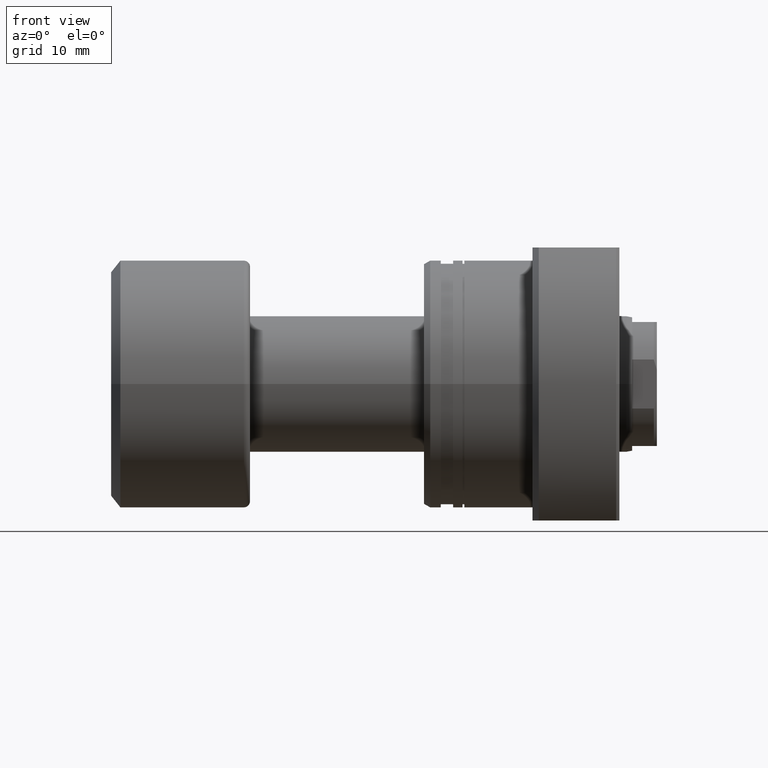
[diagram: clean part render]
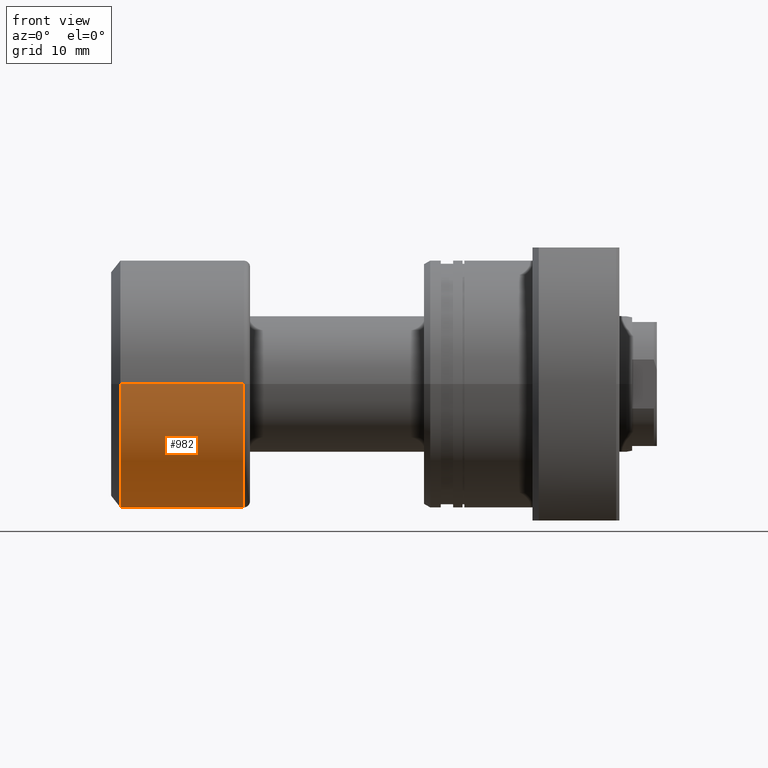
[diagram: same view with one face highlighted and labeled with its STEP entity id]
A machine part, front view. The second image highlights one B-rep face of the part: STEP entity #982.
In plain terms, the highlighted cylindrical surface (partial cylindrical patch) has radius 20 mm, axis along (-1, -0, -0).
Its self-contained STEP definition (entity closure, byte-faithful):
#10 = CARTESIAN_POINT ( 'NONE',  ( 21.40000000000000213, 2.288820569227801297E-16, 0.000000000000000000 ) ) ;
#24 = CARTESIAN_POINT ( 'NONE',  ( -2.139084644138131786E-16, 20.00000000000000000, 2.449293598294706513E-15 ) ) ;
#340 = LINE ( 'NONE', #2601, #2043 ) ;
#430 = AXIS2_PLACEMENT_3D ( 'NONE', #2888, #1636, #2688 ) ;
#493 = CIRCLE ( 'NONE', #1310, 20.00000000000000000 ) ;
#631 = CARTESIAN_POINT ( 'NONE',  ( 21.40000000000000213, 20.00000000000000000, 2.449293598294706513E-15 ) ) ;
#703 = FACE_OUTER_BOUND ( 'NONE', #1199, .T. ) ;
#785 = EDGE_CURVE ( 'NONE', #1814, #3218, #340, .T. ) ;
#829 = ORIENTED_EDGE ( 'NONE', *, *, #1470, .F. ) ;
#909 = ORIENTED_EDGE ( 'NONE', *, *, #785, .T. ) ;
#944 = ORIENTED_EDGE ( 'NONE', *, *, #1042, .T. ) ;
#982 = ADVANCED_FACE ( 'NONE', ( #703 ), #1652, .T. ) ;
#986 = VERTEX_POINT ( 'NONE', #631 ) ;
#1042 = EDGE_CURVE ( 'NONE', #986, #1814, #2305, .T. ) ;
#1199 = EDGE_LOOP ( 'NONE', ( #829, #944, #909, #1932 ) ) ;
#1233 = DIRECTION ( 'NONE',  ( -1.000000000000000000, -1.069542322069065801E-17, -0.000000000000000000 ) ) ;
#1310 = AXIS2_PLACEMENT_3D ( 'NONE', #2804, #2342, #2616 ) ;
#1335 = VERTEX_POINT ( 'NONE', #2425 ) ;
#1470 = EDGE_CURVE ( 'NONE', #986, #1335, #2253, .T. ) ;
#1636 = DIRECTION ( 'NONE',  ( -1.000000000000000000, -1.069542322069065801E-17, -0.000000000000000000 ) ) ;
#1652 = CYLINDRICAL_SURFACE ( 'NONE', #430, 20.00000000000000000 ) ;
#1811 = DIRECTION ( 'NONE',  ( -1.000000000000000000, -1.069542322069065801E-17, -0.000000000000000000 ) ) ;
#1814 = VERTEX_POINT ( 'NONE', #2438 ) ;
#1932 = ORIENTED_EDGE ( 'NONE', *, *, #2712, .F. ) ;
#1944 = AXIS2_PLACEMENT_3D ( 'NONE', #10, #1952, #2939 ) ;
#1952 = DIRECTION ( 'NONE',  ( -1.000000000000000000, -1.069542322069065801E-17, -0.000000000000000000 ) ) ;
#2043 = VECTOR ( 'NONE', #1811, 1000.000000000000000 ) ;
#2253 = LINE ( 'NONE', #24, #2505 ) ;
#2305 = CIRCLE ( 'NONE', #1944, 20.00000000000000000 ) ;
#2342 = DIRECTION ( 'NONE',  ( -1.000000000000000000, -1.069542322069065801E-17, -0.000000000000000000 ) ) ;
#2425 = CARTESIAN_POINT ( 'NONE',  ( 1.500000000000002442, 20.00000000000000000, 0.000000000000000000 ) ) ;
#2438 = CARTESIAN_POINT ( 'NONE',  ( 21.40000000000000213, -20.00000000000000000, 0.000000000000000000 ) ) ;
#2505 = VECTOR ( 'NONE', #1233, 1000.000000000000000 ) ;
#2601 = CARTESIAN_POINT ( 'NONE',  ( 2.139084644138131786E-16, -20.00000000000000000, 0.000000000000000000 ) ) ;
#2616 = DIRECTION ( 'NONE',  ( 1.084202172485504434E-17, -1.000000000000000000, 0.000000000000000000 ) ) ;
#2658 = CARTESIAN_POINT ( 'NONE',  ( 1.500000000000002887, -20.00000000000000000, 2.449293598294706513E-15 ) ) ;
#2688 = DIRECTION ( 'NONE',  ( 1.069542322069065955E-17, -1.000000000000000000, 0.000000000000000000 ) ) ;
#2712 = EDGE_CURVE ( 'NONE', #1335, #3218, #493, .T. ) ;
#2804 = CARTESIAN_POINT ( 'NONE',  ( 1.500000000000002442, 1.604313483103601552E-17, 0.000000000000000000 ) ) ;
#2888 = CARTESIAN_POINT ( 'NONE',  ( 0.000000000000000000, 0.000000000000000000, 0.000000000000000000 ) ) ;
#2939 = DIRECTION ( 'NONE',  ( 0.000000000000000000, -1.000000000000000000, 0.000000000000000000 ) ) ;
#3218 = VERTEX_POINT ( 'NONE', #2658 ) ;